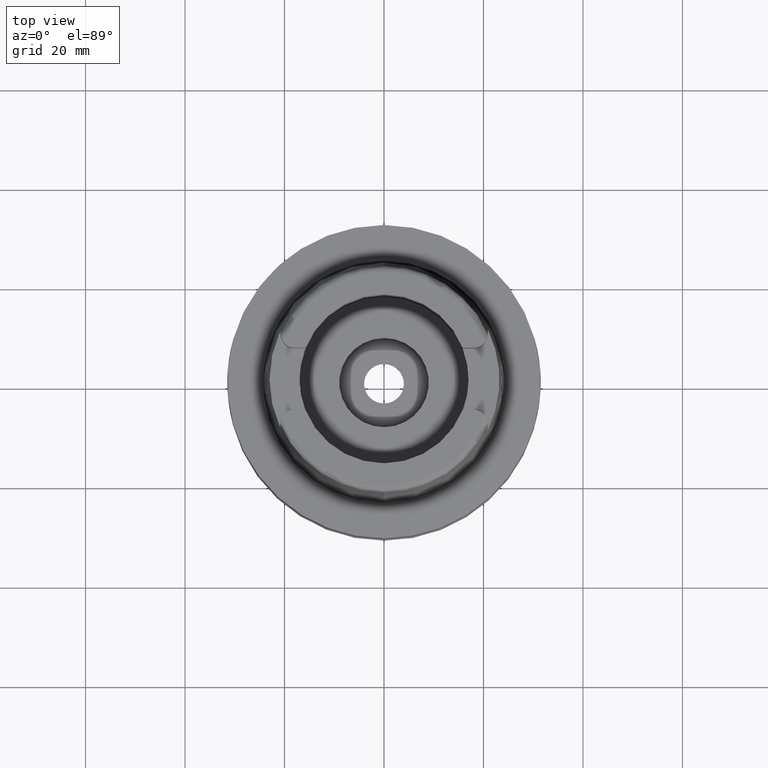
[diagram: clean part render]
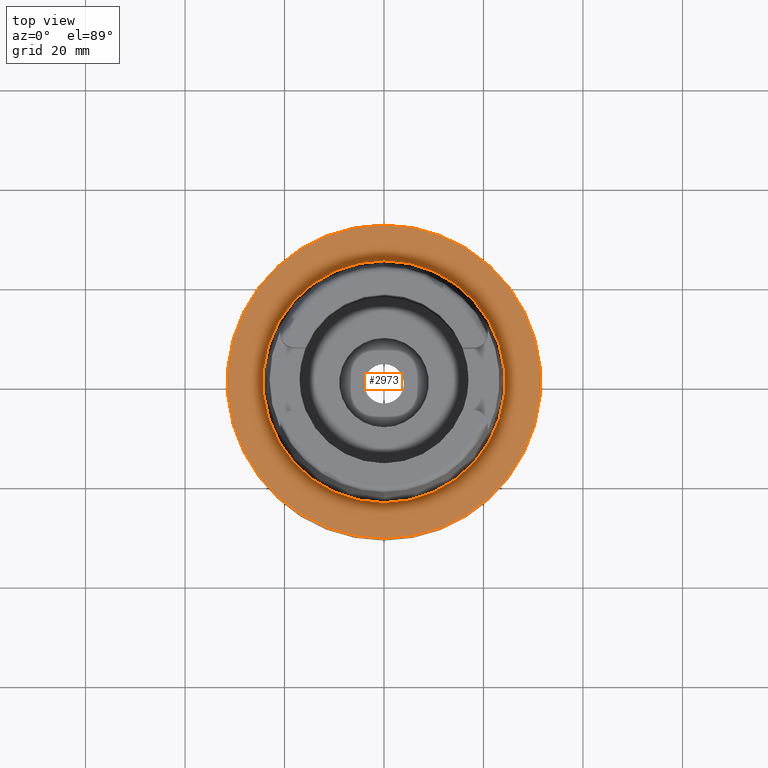
[diagram: same view with one face highlighted and labeled with its STEP entity id]
A machine part, top view. The second image highlights one B-rep face of the part: STEP entity #2973.
In plain terms, the highlighted planar face has unit normal (0, 0, 1).
Its self-contained STEP definition (entity closure, byte-faithful):
#638=CARTESIAN_POINT('',(0.E0,0.E0,-2.842170943040E-14));
#639=DIRECTION('',(0.E0,0.E0,-1.E0));
#640=DIRECTION('',(0.E0,-1.E0,0.E0));
#641=AXIS2_PLACEMENT_3D('',#638,#639,#640);
#646=CARTESIAN_POINT('',(0.E0,0.E0,-2.842170943040E-14));
#647=DIRECTION('',(0.E0,0.E0,-1.E0));
#648=DIRECTION('',(0.E0,1.E0,0.E0));
#649=AXIS2_PLACEMENT_3D('',#646,#647,#648);
#654=CARTESIAN_POINT('',(0.E0,0.E0,-1.705302565824E-12));
#655=DIRECTION('',(0.E0,0.E0,1.E0));
#656=DIRECTION('',(0.E0,-1.E0,0.E0));
#657=AXIS2_PLACEMENT_3D('',#654,#655,#656);
#662=CARTESIAN_POINT('',(0.E0,0.E0,-1.705302565824E-12));
#663=DIRECTION('',(0.E0,0.E0,1.E0));
#664=DIRECTION('',(0.E0,1.E0,0.E0));
#665=AXIS2_PLACEMENT_3D('',#662,#663,#664);
#2317=CARTESIAN_POINT('',(0.E0,-2.431503482329E1,-9.485745522397E-13));
#2318=VERTEX_POINT('',#2317);
#2319=CARTESIAN_POINT('',(0.E0,2.431503482329E1,-1.705302565824E-12));
#2320=VERTEX_POINT('',#2319);
#2581=CARTESIAN_POINT('',(0.E0,3.15E1,1.894780628694E-14));
#2582=VERTEX_POINT('',#2581);
#2583=CARTESIAN_POINT('',(0.E0,-3.15E1,-2.842170943040E-14));
#2584=VERTEX_POINT('',#2583);
#2958=CARTESIAN_POINT('',(0.E0,0.E0,0.E0));
#2959=DIRECTION('',(0.E0,0.E0,1.E0));
#2960=DIRECTION('',(0.E0,1.E0,0.E0));
#2961=AXIS2_PLACEMENT_3D('',#2958,#2959,#2960);
#2962=PLANE('',#2961);
#2964=ORIENTED_EDGE('',*,*,#2963,.T.);
#2966=ORIENTED_EDGE('',*,*,#2965,.T.);
#2967=EDGE_LOOP('',(#2964,#2966));
#2968=FACE_OUTER_BOUND('',#2967,.F.);
#2969=ORIENTED_EDGE('',*,*,#2916,.T.);
#2970=ORIENTED_EDGE('',*,*,#2705,.T.);
#2971=EDGE_LOOP('',(#2969,#2970));
#2972=FACE_BOUND('',#2971,.F.);
#642=CIRCLE('',#641,3.15E1);
#650=CIRCLE('',#649,3.15E1);
#658=CIRCLE('',#657,2.431503482329E1);
#666=CIRCLE('',#665,2.431503482329E1);
#2705=EDGE_CURVE('',#2320,#2318,#666,.T.);
#2916=EDGE_CURVE('',#2318,#2320,#658,.T.);
#2963=EDGE_CURVE('',#2584,#2582,#642,.T.);
#2965=EDGE_CURVE('',#2582,#2584,#650,.T.);
#2973=ADVANCED_FACE('',(#2968,#2972),#2962,.T.);